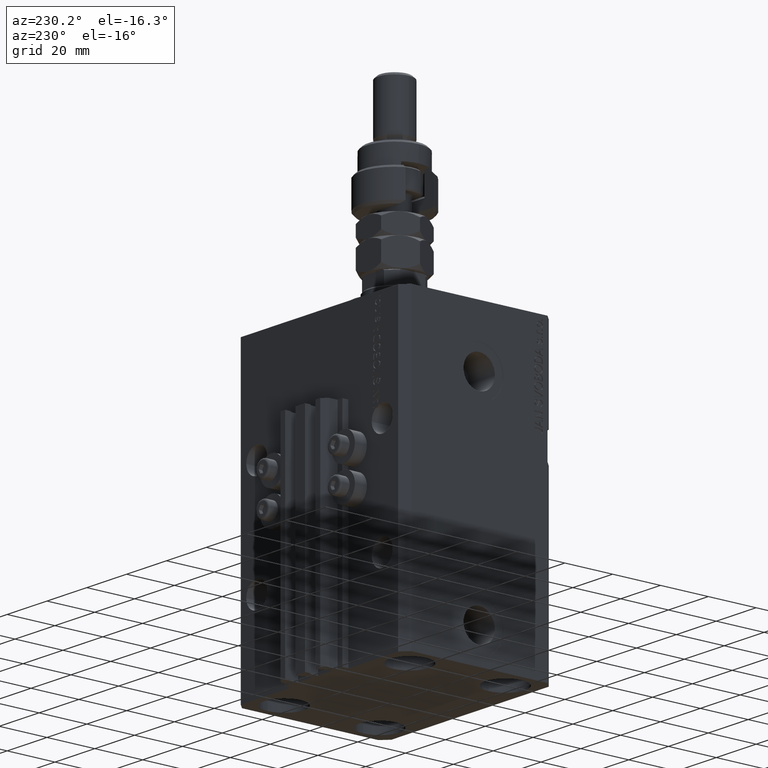
[diagram: clean part render]
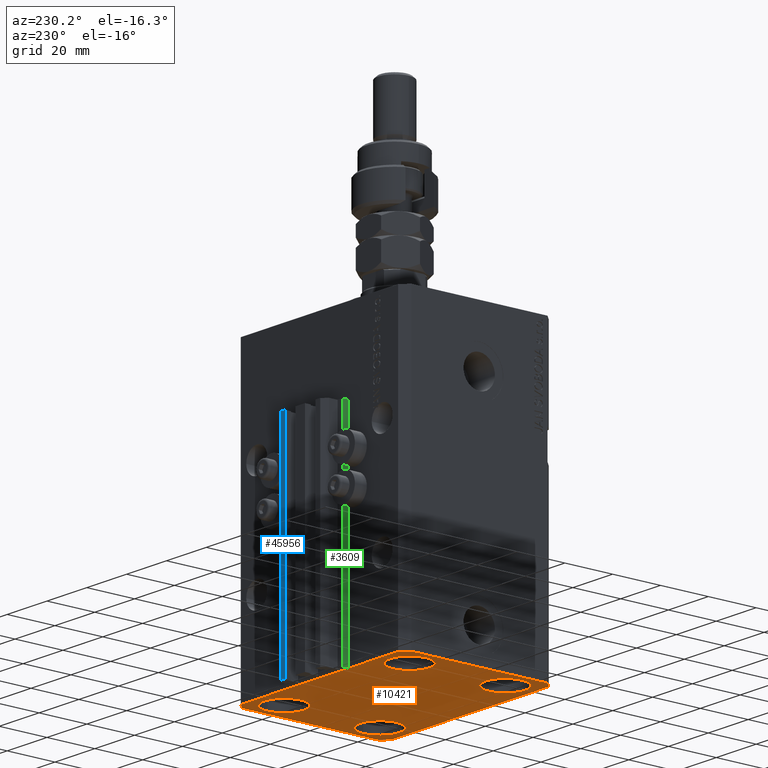
[diagram: same view with three faces highlighted in distinct colors, each labeled with its STEP entity id]
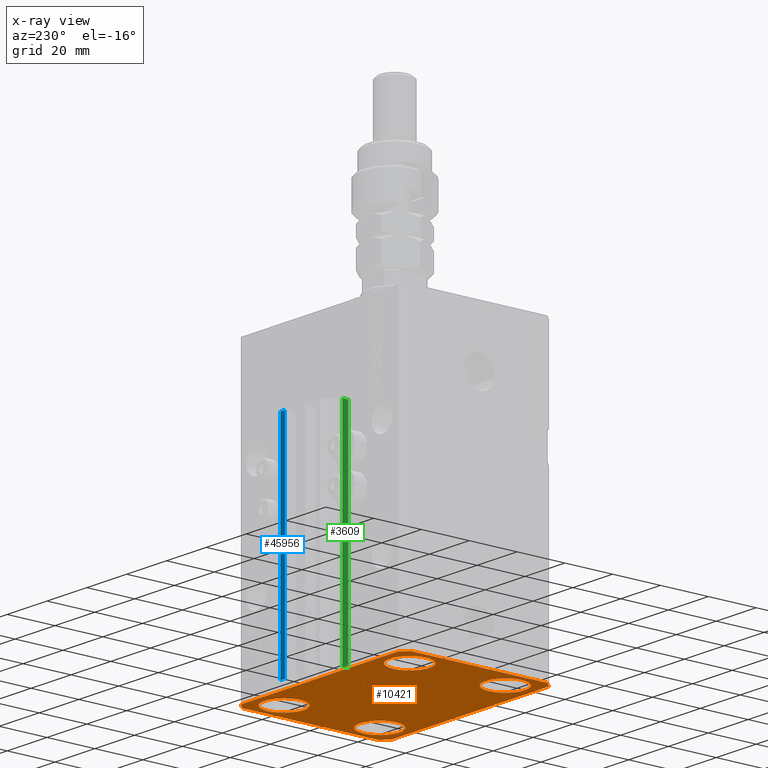
[diagram: x-ray of the same camera — body ghosted, the three highlighted faces saturated]
A machine part, auxiliary view with three faces highlighted in distinct colors.
The next image is the same camera in x-ray (body ghosted, the three faces saturated) — at least one of them is partly hidden behind the body in this view.
Their STEP definitions:

[orange] entity #10421 — the highlighted planar face has unit normal (0, 0, 1).
#106 = AXIS2_PLACEMENT_3D ( 'NONE', #13212, #28906, #1611 ) ;
#269 = ORIENTED_EDGE ( 'NONE', *, *, #23284, .T. ) ;
#504 = EDGE_CURVE ( 'NONE', #42761, #5857, #21725, .T. ) ;
#704 = CIRCLE ( 'NONE', #17152, 8.249999999999992895 ) ;
#768 = DIRECTION ( 'NONE',  ( 0.7071067811865471286, -0.7071067811865479058, 0.000000000000000000 ) ) ;
#1013 = ORIENTED_EDGE ( 'NONE', *, *, #504, .F. ) ;
#1400 = ORIENTED_EDGE ( 'NONE', *, *, #47163, .F. ) ;
#1611 = DIRECTION ( 'NONE',  ( 1.000000000000000000, 0.000000000000000000, 0.000000000000000000 ) ) ;
#1747 = VERTEX_POINT ( 'NONE', #9789 ) ;
#1896 = AXIS2_PLACEMENT_3D ( 'NONE', #16159, #39058, #47045 ) ;
#2150 = CARTESIAN_POINT ( 'NONE',  ( -31.50000000000000000, -20.00000000000000000, -123.0000000000000000 ) ) ;
#2531 = VERTEX_POINT ( 'NONE', #25747 ) ;
#2878 = CARTESIAN_POINT ( 'NONE',  ( -39.75000000000000000, 20.00000000000000000, -123.0000000000000000 ) ) ;
#3482 = VECTOR ( 'NONE', #14038, 1000.000000000000000 ) ;
#3584 = CARTESIAN_POINT ( 'NONE',  ( -39.50000000000000711, 31.50000000000000000, -123.0000000000000000 ) ) ;
#3744 = EDGE_LOOP ( 'NONE', ( #18470, #26961 ) ) ;
#3808 = CARTESIAN_POINT ( 'NONE',  ( -31.50000000000000000, 20.00000000000000000, -123.0000000000000000 ) ) ;
#4555 = DIRECTION ( 'NONE',  ( -0.000000000000000000, -0.000000000000000000, 1.000000000000000000 ) ) ;
#4768 = CARTESIAN_POINT ( 'NONE',  ( -39.50000000000000711, 31.50000000000000000, -123.0000000000000000 ) ) ;
#4898 = CARTESIAN_POINT ( 'NONE',  ( -42.50000000000000000, -28.50000000000000000, -123.0000000000000000 ) ) ;
#5857 = VERTEX_POINT ( 'NONE', #37755 ) ;
#6683 = VERTEX_POINT ( 'NONE', #24080 ) ;
#6721 = ORIENTED_EDGE ( 'NONE', *, *, #36971, .T. ) ;
#7046 = CARTESIAN_POINT ( 'NONE',  ( 42.50000000000051870, 28.49999999999995381, -123.0000000000000000 ) ) ;
#7050 = CARTESIAN_POINT ( 'NONE',  ( 31.50000000000000000, 20.00000000000001066, -123.0000000000000000 ) ) ;
#7501 = FACE_BOUND ( 'NONE', #20972, .T. ) ;
#7558 = DIRECTION ( 'NONE',  ( 0.000000000000000000, -1.000000000000000000, 0.000000000000000000 ) ) ;
#7852 = AXIS2_PLACEMENT_3D ( 'NONE', #28313, #8757, #36027 ) ;
#7880 = CARTESIAN_POINT ( 'NONE',  ( -39.50000000000000711, -31.50000000000000000, -123.0000000000000000 ) ) ;
#8047 = EDGE_CURVE ( 'NONE', #36663, #50567, #39108, .T. ) ;
#8249 = CARTESIAN_POINT ( 'NONE',  ( 23.25000000000000355, 20.00000000000001066, -123.0000000000000000 ) ) ;
#8757 = DIRECTION ( 'NONE',  ( -0.000000000000000000, -0.000000000000000000, 1.000000000000000000 ) ) ;
#8769 = VERTEX_POINT ( 'NONE', #4768 ) ;
#9632 = EDGE_CURVE ( 'NONE', #2531, #32043, #35155, .T. ) ;
#9789 = CARTESIAN_POINT ( 'NONE',  ( 39.74999999999999289, 20.00000000000001066, -123.0000000000000000 ) ) ;
#10081 = CIRCLE ( 'NONE', #29813, 8.249999999999992895 ) ;
#10137 = DIRECTION ( 'NONE',  ( 1.000000000000000000, 0.000000000000000000, 0.000000000000000000 ) ) ;
#10421 = ADVANCED_FACE ( 'NONE', ( #39646, #7501, #34528, #46874, #27321 ), #30687, .F. ) ;
#10922 = VECTOR ( 'NONE', #45908, 1000.000000000000114 ) ;
#11133 = ORIENTED_EDGE ( 'NONE', *, *, #18284, .T. ) ;
#11253 = CIRCLE ( 'NONE', #39996, 8.250000000000000000 ) ;
#11708 = EDGE_CURVE ( 'NONE', #5857, #8769, #43427, .T. ) ;
#12447 = ORIENTED_EDGE ( 'NONE', *, *, #43820, .F. ) ;
#12792 = EDGE_CURVE ( 'NONE', #50567, #36663, #18615, .T. ) ;
#13056 = DIRECTION ( 'NONE',  ( 1.000000000000000000, 0.000000000000000000, 0.000000000000000000 ) ) ;
#13212 = CARTESIAN_POINT ( 'NONE',  ( 31.50000000000000000, -20.00000000000000000, -123.0000000000000000 ) ) ;
#13305 = CARTESIAN_POINT ( 'NONE',  ( 31.50000000000000000, -20.00000000000000000, -123.0000000000000000 ) ) ;
#13494 = DIRECTION ( 'NONE',  ( -0.000000000000000000, -0.000000000000000000, 1.000000000000000000 ) ) ;
#14038 = DIRECTION ( 'NONE',  ( 0.7071067811865483499, 0.7071067811865466846, 0.000000000000000000 ) ) ;
#14050 = VECTOR ( 'NONE', #34972, 1000.000000000000000 ) ;
#14482 = VECTOR ( 'NONE', #15611, 1000.000000000000000 ) ;
#14491 = ORIENTED_EDGE ( 'NONE', *, *, #41647, .F. ) ;
#14793 = CARTESIAN_POINT ( 'NONE',  ( -23.25000000000000000, -20.00000000000000000, -123.0000000000000000 ) ) ;
#14897 = CIRCLE ( 'NONE', #106, 8.249999999999992895 ) ;
#15611 = DIRECTION ( 'NONE',  ( 1.000000000000000000, 0.000000000000000000, 0.000000000000000000 ) ) ;
#15644 = CARTESIAN_POINT ( 'NONE',  ( 39.50000000000056843, 31.50000000000000000, -123.0000000000000000 ) ) ;
#15652 = DIRECTION ( 'NONE',  ( -0.000000000000000000, -0.000000000000000000, 1.000000000000000000 ) ) ;
#15730 = DIRECTION ( 'NONE',  ( 1.000000000000000000, 0.000000000000000000, -0.000000000000000000 ) ) ;
#16159 = CARTESIAN_POINT ( 'NONE',  ( -31.50000000000000000, -20.00000000000000000, -123.0000000000000000 ) ) ;
#17107 = CARTESIAN_POINT ( 'NONE',  ( 42.50000000000000711, -28.50000000000000355, -123.0000000000000000 ) ) ;
#17152 = AXIS2_PLACEMENT_3D ( 'NONE', #13305, #4555, #13056 ) ;
#17964 = CARTESIAN_POINT ( 'NONE',  ( 42.50000000000000711, -28.50000000000000355, -123.0000000000000000 ) ) ;
#18284 = EDGE_CURVE ( 'NONE', #49867, #6683, #704, .T. ) ;
#18470 = ORIENTED_EDGE ( 'NONE', *, *, #29409, .T. ) ;
#18615 = CIRCLE ( 'NONE', #44108, 8.250000000000000000 ) ;
#18628 = ORIENTED_EDGE ( 'NONE', *, *, #20246, .F. ) ;
#18684 = DIRECTION ( 'NONE',  ( 1.000000000000000000, 0.000000000000000000, 0.000000000000000000 ) ) ;
#18869 = DIRECTION ( 'NONE',  ( -0.000000000000000000, -0.000000000000000000, 1.000000000000000000 ) ) ;
#18958 = VECTOR ( 'NONE', #7558, 1000.000000000000000 ) ;
#19244 = DIRECTION ( 'NONE',  ( -1.000000000000000000, 0.000000000000000000, 0.000000000000000000 ) ) ;
#19603 = VECTOR ( 'NONE', #768, 1000.000000000000000 ) ;
#20131 = VERTEX_POINT ( 'NONE', #34139 ) ;
#20246 = EDGE_CURVE ( 'NONE', #49638, #42761, #36661, .T. ) ;
#20972 = EDGE_LOOP ( 'NONE', ( #11133, #269 ) ) ;
#21725 = LINE ( 'NONE', #7046, #10922 ) ;
#22177 = EDGE_CURVE ( 'NONE', #42622, #20131, #30745, .T. ) ;
#23277 = CIRCLE ( 'NONE', #1896, 8.250000000000000000 ) ;
#23284 = EDGE_CURVE ( 'NONE', #6683, #49867, #14897, .T. ) ;
#23451 = VECTOR ( 'NONE', #19244, 1000.000000000000000 ) ;
#23475 = CARTESIAN_POINT ( 'NONE',  ( -39.75000000000000000, -20.00000000000000000, -123.0000000000000000 ) ) ;
#23880 = ORIENTED_EDGE ( 'NONE', *, *, #8047, .T. ) ;
#24080 = CARTESIAN_POINT ( 'NONE',  ( 39.74999999999999289, -20.00000000000000000, -123.0000000000000000 ) ) ;
#24147 = CARTESIAN_POINT ( 'NONE',  ( 39.50000000000000711, -31.50000000000000000, -123.0000000000000000 ) ) ;
#25017 = CIRCLE ( 'NONE', #32409, 8.249999999999992895 ) ;
#25738 = ORIENTED_EDGE ( 'NONE', *, *, #12792, .T. ) ;
#25747 = CARTESIAN_POINT ( 'NONE',  ( -39.50000000000000711, -31.50000000000000000, -123.0000000000000000 ) ) ;
#25919 = EDGE_CURVE ( 'NONE', #1747, #27258, #10081, .T. ) ;
#26961 = ORIENTED_EDGE ( 'NONE', *, *, #25919, .T. ) ;
#26966 = VERTEX_POINT ( 'NONE', #14793 ) ;
#27258 = VERTEX_POINT ( 'NONE', #8249 ) ;
#27321 = FACE_OUTER_BOUND ( 'NONE', #28494, .T. ) ;
#27832 = ORIENTED_EDGE ( 'NONE', *, *, #11708, .F. ) ;
#28313 = CARTESIAN_POINT ( 'NONE',  ( -31.50000000000000000, 20.00000000000000000, -123.0000000000000000 ) ) ;
#28494 = EDGE_LOOP ( 'NONE', ( #27832, #1013, #18628, #1400, #38133, #14491, #40016, #12447 ) ) ;
#28906 = DIRECTION ( 'NONE',  ( -0.000000000000000000, -0.000000000000000000, 1.000000000000000000 ) ) ;
#29058 = CARTESIAN_POINT ( 'NONE',  ( -23.25000000000000000, 20.00000000000000000, -123.0000000000000000 ) ) ;
#29409 = EDGE_CURVE ( 'NONE', #27258, #1747, #25017, .T. ) ;
#29738 = VERTEX_POINT ( 'NONE', #23475 ) ;
#29813 = AXIS2_PLACEMENT_3D ( 'NONE', #7050, #18869, #50054 ) ;
#30111 = EDGE_CURVE ( 'NONE', #29738, #26966, #23277, .T. ) ;
#30263 = CARTESIAN_POINT ( 'NONE',  ( 39.50000000000000711, -31.50000000000000000, -123.0000000000000000 ) ) ;
#30687 = PLANE ( 'NONE',  #39994 ) ;
#30745 = LINE ( 'NONE', #35592, #18958 ) ;
#32043 = VERTEX_POINT ( 'NONE', #24147 ) ;
#32409 = AXIS2_PLACEMENT_3D ( 'NONE', #38990, #50608, #18684 ) ;
#32701 = EDGE_LOOP ( 'NONE', ( #38898, #6721 ) ) ;
#34139 = CARTESIAN_POINT ( 'NONE',  ( -42.50000000000000000, -28.50000000000000000, -123.0000000000000000 ) ) ;
#34528 = FACE_BOUND ( 'NONE', #3744, .T. ) ;
#34972 = DIRECTION ( 'NONE',  ( -0.7071067811865471286, -0.7071067811865479058, 0.000000000000000000 ) ) ;
#35155 = LINE ( 'NONE', #7880, #14482 ) ;
#35592 = CARTESIAN_POINT ( 'NONE',  ( -42.50000000000000000, 28.50000000000000000, -123.0000000000000000 ) ) ;
#36027 = DIRECTION ( 'NONE',  ( 1.000000000000000000, 0.000000000000000000, 0.000000000000000000 ) ) ;
#36042 = LINE ( 'NONE', #4898, #19603 ) ;
#36147 = DIRECTION ( 'NONE',  ( 8.886653596232072440E-15, 1.000000000000000000, 0.000000000000000000 ) ) ;
#36661 = LINE ( 'NONE', #17107, #41895 ) ;
#36663 = VERTEX_POINT ( 'NONE', #2878 ) ;
#36697 = CARTESIAN_POINT ( 'NONE',  ( 23.25000000000000355, -20.00000000000000000, -123.0000000000000000 ) ) ;
#36971 = EDGE_CURVE ( 'NONE', #26966, #29738, #11253, .T. ) ;
#37755 = CARTESIAN_POINT ( 'NONE',  ( 39.50000000000056843, 31.50000000000000000, -123.0000000000000000 ) ) ;
#38133 = ORIENTED_EDGE ( 'NONE', *, *, #9632, .F. ) ;
#38898 = ORIENTED_EDGE ( 'NONE', *, *, #30111, .T. ) ;
#38990 = CARTESIAN_POINT ( 'NONE',  ( 31.50000000000000000, 20.00000000000001066, -123.0000000000000000 ) ) ;
#39058 = DIRECTION ( 'NONE',  ( -0.000000000000000000, -0.000000000000000000, 1.000000000000000000 ) ) ;
#39108 = CIRCLE ( 'NONE', #7852, 8.250000000000000000 ) ;
#39646 = FACE_BOUND ( 'NONE', #32701, .T. ) ;
#39994 = AXIS2_PLACEMENT_3D ( 'NONE', #50258, #43265, #15730 ) ;
#39996 = AXIS2_PLACEMENT_3D ( 'NONE', #2150, #13494, #10137 ) ;
#40016 = ORIENTED_EDGE ( 'NONE', *, *, #22177, .F. ) ;
#41647 = EDGE_CURVE ( 'NONE', #20131, #2531, #36042, .T. ) ;
#41895 = VECTOR ( 'NONE', #36147, 1000.000000000000000 ) ;
#42111 = EDGE_LOOP ( 'NONE', ( #23880, #25738 ) ) ;
#42622 = VERTEX_POINT ( 'NONE', #44271 ) ;
#42671 = DIRECTION ( 'NONE',  ( 1.000000000000000000, 0.000000000000000000, 0.000000000000000000 ) ) ;
#42703 = LINE ( 'NONE', #3584, #14050 ) ;
#42761 = VERTEX_POINT ( 'NONE', #45046 ) ;
#43265 = DIRECTION ( 'NONE',  ( 0.000000000000000000, 0.000000000000000000, 1.000000000000000000 ) ) ;
#43427 = LINE ( 'NONE', #15644, #23451 ) ;
#43820 = EDGE_CURVE ( 'NONE', #8769, #42622, #42703, .T. ) ;
#44108 = AXIS2_PLACEMENT_3D ( 'NONE', #3808, #15652, #42671 ) ;
#44271 = CARTESIAN_POINT ( 'NONE',  ( -42.50000000000000000, 28.50000000000000000, -123.0000000000000000 ) ) ;
#45046 = CARTESIAN_POINT ( 'NONE',  ( 42.50000000000051870, 28.49999999999995381, -123.0000000000000000 ) ) ;
#45908 = DIRECTION ( 'NONE',  ( -0.7071067811865356934, 0.7071067811865594521, 0.000000000000000000 ) ) ;
#46874 = FACE_BOUND ( 'NONE', #42111, .T. ) ;
#47045 = DIRECTION ( 'NONE',  ( 1.000000000000000000, 0.000000000000000000, 0.000000000000000000 ) ) ;
#47163 = EDGE_CURVE ( 'NONE', #32043, #49638, #49318, .T. ) ;
#49318 = LINE ( 'NONE', #30263, #3482 ) ;
#49638 = VERTEX_POINT ( 'NONE', #17964 ) ;
#49867 = VERTEX_POINT ( 'NONE', #36697 ) ;
#50054 = DIRECTION ( 'NONE',  ( 1.000000000000000000, 0.000000000000000000, 0.000000000000000000 ) ) ;
#50258 = CARTESIAN_POINT ( 'NONE',  ( 0.000000000000000000, 0.000000000000000000, -123.0000000000000000 ) ) ;
#50567 = VERTEX_POINT ( 'NONE', #29058 ) ;
#50608 = DIRECTION ( 'NONE',  ( -0.000000000000000000, -0.000000000000000000, 1.000000000000000000 ) ) ;

[blue] entity #45956 — the highlighted planar face has unit normal (0, 1, 0).
#5613 = FACE_OUTER_BOUND ( 'NONE', #21733, .T. ) ;
#6244 = CARTESIAN_POINT ( 'NONE',  ( 7.649999999999998579, 39.50000000000002132, -123.0000000000000000 ) ) ;
#7229 = CARTESIAN_POINT ( 'NONE',  ( 9.999999999999998224, 39.50000000000002132, -123.0000000000000000 ) ) ;
#9197 = CARTESIAN_POINT ( 'NONE',  ( 9.999999999999998224, 39.50000000000002132, -33.00000000000000000 ) ) ;
#9828 = DIRECTION ( 'NONE',  ( 0.000000000000000000, 0.000000000000000000, 1.000000000000000000 ) ) ;
#10202 = VECTOR ( 'NONE', #9828, 1000.000000000000000 ) ;
#13596 = PLANE ( 'NONE',  #33834 ) ;
#14872 = ORIENTED_EDGE ( 'NONE', *, *, #28594, .F. ) ;
#15770 = DIRECTION ( 'NONE',  ( 0.000000000000000000, 0.000000000000000000, 1.000000000000000000 ) ) ;
#16666 = DIRECTION ( 'NONE',  ( 0.000000000000000000, 1.000000000000000000, -0.000000000000000000 ) ) ;
#16733 = DIRECTION ( 'NONE',  ( -1.000000000000000000, 0.000000000000000000, 0.000000000000000000 ) ) ;
#17613 = VERTEX_POINT ( 'NONE', #39485 ) ;
#19120 = LINE ( 'NONE', #34818, #24654 ) ;
#20349 = ORIENTED_EDGE ( 'NONE', *, *, #41583, .T. ) ;
#20540 = EDGE_CURVE ( 'NONE', #41385, #17613, #19120, .T. ) ;
#21030 = LINE ( 'NONE', #9197, #27734 ) ;
#21733 = EDGE_LOOP ( 'NONE', ( #49076, #14872, #20349, #44450 ) ) ;
#24654 = VECTOR ( 'NONE', #15770, 1000.000000000000000 ) ;
#25262 = LINE ( 'NONE', #32469, #10202 ) ;
#25677 = CARTESIAN_POINT ( 'NONE',  ( 9.999999999999998224, 39.50000000000002132, -123.0000000000000000 ) ) ;
#27734 = VECTOR ( 'NONE', #48597, 1000.000000000000000 ) ;
#28594 = EDGE_CURVE ( 'NONE', #37549, #41404, #25262, .T. ) ;
#32469 = CARTESIAN_POINT ( 'NONE',  ( 9.999999999999998224, 39.50000000000002132, -123.0000000000000000 ) ) ;
#32640 = DIRECTION ( 'NONE',  ( 0.000000000000000000, 0.000000000000000000, 1.000000000000000000 ) ) ;
#33527 = CARTESIAN_POINT ( 'NONE',  ( 9.999999999999998224, 39.50000000000002132, -33.00000000000000000 ) ) ;
#33834 = AXIS2_PLACEMENT_3D ( 'NONE', #25677, #16666, #32640 ) ;
#34818 = CARTESIAN_POINT ( 'NONE',  ( 7.649999999999998579, 39.50000000000002132, -123.0000000000000000 ) ) ;
#35949 = VECTOR ( 'NONE', #16733, 1000.000000000000000 ) ;
#36290 = LINE ( 'NONE', #40666, #35949 ) ;
#37549 = VERTEX_POINT ( 'NONE', #7229 ) ;
#39485 = CARTESIAN_POINT ( 'NONE',  ( 7.649999999999998579, 39.50000000000002132, -33.00000000000000000 ) ) ;
#39684 = EDGE_CURVE ( 'NONE', #41404, #17613, #21030, .T. ) ;
#40666 = CARTESIAN_POINT ( 'NONE',  ( 9.999999999999998224, 39.50000000000002132, -123.0000000000000000 ) ) ;
#41385 = VERTEX_POINT ( 'NONE', #6244 ) ;
#41404 = VERTEX_POINT ( 'NONE', #33527 ) ;
#41583 = EDGE_CURVE ( 'NONE', #37549, #41385, #36290, .T. ) ;
#44450 = ORIENTED_EDGE ( 'NONE', *, *, #20540, .T. ) ;
#45956 = ADVANCED_FACE ( 'NONE', ( #5613 ), #13596, .T. ) ;
#48597 = DIRECTION ( 'NONE',  ( -1.000000000000000000, 0.000000000000000000, 0.000000000000000000 ) ) ;
#49076 = ORIENTED_EDGE ( 'NONE', *, *, #39684, .F. ) ;

[green] entity #3609 — the highlighted planar face has unit normal (-1, 0, 0).
#2183 = CARTESIAN_POINT ( 'NONE',  ( -14.50000000000000000, 33.99999999999998579, -33.00000000000000000 ) ) ;
#3609 = ADVANCED_FACE ( 'NONE', ( #13806 ), #34368, .T. ) ;
#6634 = VERTEX_POINT ( 'NONE', #8151 ) ;
#7160 = LINE ( 'NONE', #39297, #29432 ) ;
#8151 = CARTESIAN_POINT ( 'NONE',  ( -14.50000000000000000, 31.50000000000000000, -123.0000000000000000 ) ) ;
#10990 = VERTEX_POINT ( 'NONE', #27670 ) ;
#11277 = DIRECTION ( 'NONE',  ( 0.000000000000000000, 0.000000000000000000, 1.000000000000000000 ) ) ;
#12459 = VERTEX_POINT ( 'NONE', #21338 ) ;
#13648 = ORIENTED_EDGE ( 'NONE', *, *, #34820, .T. ) ;
#13806 = FACE_OUTER_BOUND ( 'NONE', #50122, .T. ) ;
#14052 = VECTOR ( 'NONE', #25175, 1000.000000000000000 ) ;
#16412 = EDGE_CURVE ( 'NONE', #22834, #10990, #7160, .T. ) ;
#16512 = LINE ( 'NONE', #40435, #27550 ) ;
#17442 = LINE ( 'NONE', #33148, #14052 ) ;
#21338 = CARTESIAN_POINT ( 'NONE',  ( -14.50000000000000000, 31.50000000000000000, -33.00000000000000000 ) ) ;
#22640 = EDGE_CURVE ( 'NONE', #22834, #6634, #17442, .T. ) ;
#22834 = VERTEX_POINT ( 'NONE', #50888 ) ;
#23309 = AXIS2_PLACEMENT_3D ( 'NONE', #33609, #25888, #33853 ) ;
#25175 = DIRECTION ( 'NONE',  ( 0.000000000000000000, -1.000000000000000000, 0.000000000000000000 ) ) ;
#25888 = DIRECTION ( 'NONE',  ( -1.000000000000000000, 0.000000000000000000, 0.000000000000000000 ) ) ;
#27550 = VECTOR ( 'NONE', #32211, 1000.000000000000000 ) ;
#27670 = CARTESIAN_POINT ( 'NONE',  ( -14.50000000000000000, 33.99999999999998579, -33.00000000000000000 ) ) ;
#29432 = VECTOR ( 'NONE', #11277, 1000.000000000000000 ) ;
#32171 = VECTOR ( 'NONE', #34582, 1000.000000000000000 ) ;
#32211 = DIRECTION ( 'NONE',  ( 0.000000000000000000, 0.000000000000000000, 1.000000000000000000 ) ) ;
#33148 = CARTESIAN_POINT ( 'NONE',  ( -14.50000000000000000, 33.99999999999998579, -123.0000000000000000 ) ) ;
#33609 = CARTESIAN_POINT ( 'NONE',  ( -14.50000000000000000, 33.99999999999998579, -123.0000000000000000 ) ) ;
#33853 = DIRECTION ( 'NONE',  ( 0.000000000000000000, 0.000000000000000000, 1.000000000000000000 ) ) ;
#34368 = PLANE ( 'NONE',  #23309 ) ;
#34582 = DIRECTION ( 'NONE',  ( 0.000000000000000000, -1.000000000000000000, 0.000000000000000000 ) ) ;
#34820 = EDGE_CURVE ( 'NONE', #6634, #12459, #16512, .T. ) ;
#37439 = LINE ( 'NONE', #2183, #32171 ) ;
#39297 = CARTESIAN_POINT ( 'NONE',  ( -14.50000000000000000, 33.99999999999998579, -123.0000000000000000 ) ) ;
#40435 = CARTESIAN_POINT ( 'NONE',  ( -14.50000000000000000, 31.50000000000000000, -123.0000000000000000 ) ) ;
#42444 = ORIENTED_EDGE ( 'NONE', *, *, #22640, .T. ) ;
#43900 = ORIENTED_EDGE ( 'NONE', *, *, #46456, .F. ) ;
#44991 = ORIENTED_EDGE ( 'NONE', *, *, #16412, .F. ) ;
#46456 = EDGE_CURVE ( 'NONE', #10990, #12459, #37439, .T. ) ;
#50122 = EDGE_LOOP ( 'NONE', ( #43900, #44991, #42444, #13648 ) ) ;
#50888 = CARTESIAN_POINT ( 'NONE',  ( -14.50000000000000000, 33.99999999999998579, -123.0000000000000000 ) ) ;